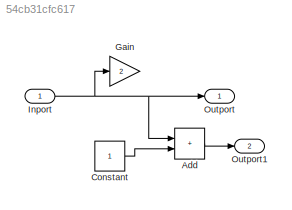
MODEL slx_54cb31cfc617
KIND model
CONFIG AbsTol = auto
CONFIG EnableMultiTasking = off
CONFIG FixedStep = auto
CONFIG MaxStep = auto
CONFIG MinStep = auto
CONFIG RelTol = 1e-3
CONFIG SampleTimeConstraint = Unconstrained
CONFIG SolverName = VariableStepAuto
CONFIG StartTime = 0.0
CONFIG StopTime = 10.0
BLOCK [Sum] Add
  IconShape = rectangular
BLOCK [Constant] Constant
BLOCK [Gain] Gain
  Gain = 2
BLOCK [Inport] Inport
BLOCK [Outport] Outport
BLOCK [Outport] Outport1
  Port = 2
LINE Add:1 -> Outport1:1
LINE Constant:1 -> Add:2
NET Inport:1 -> Add:1, Gain:1, Outport:1
note: NET lines group one-source signal fan-out (src -> all destinations, sorted); 1:1 wires keep LINE
